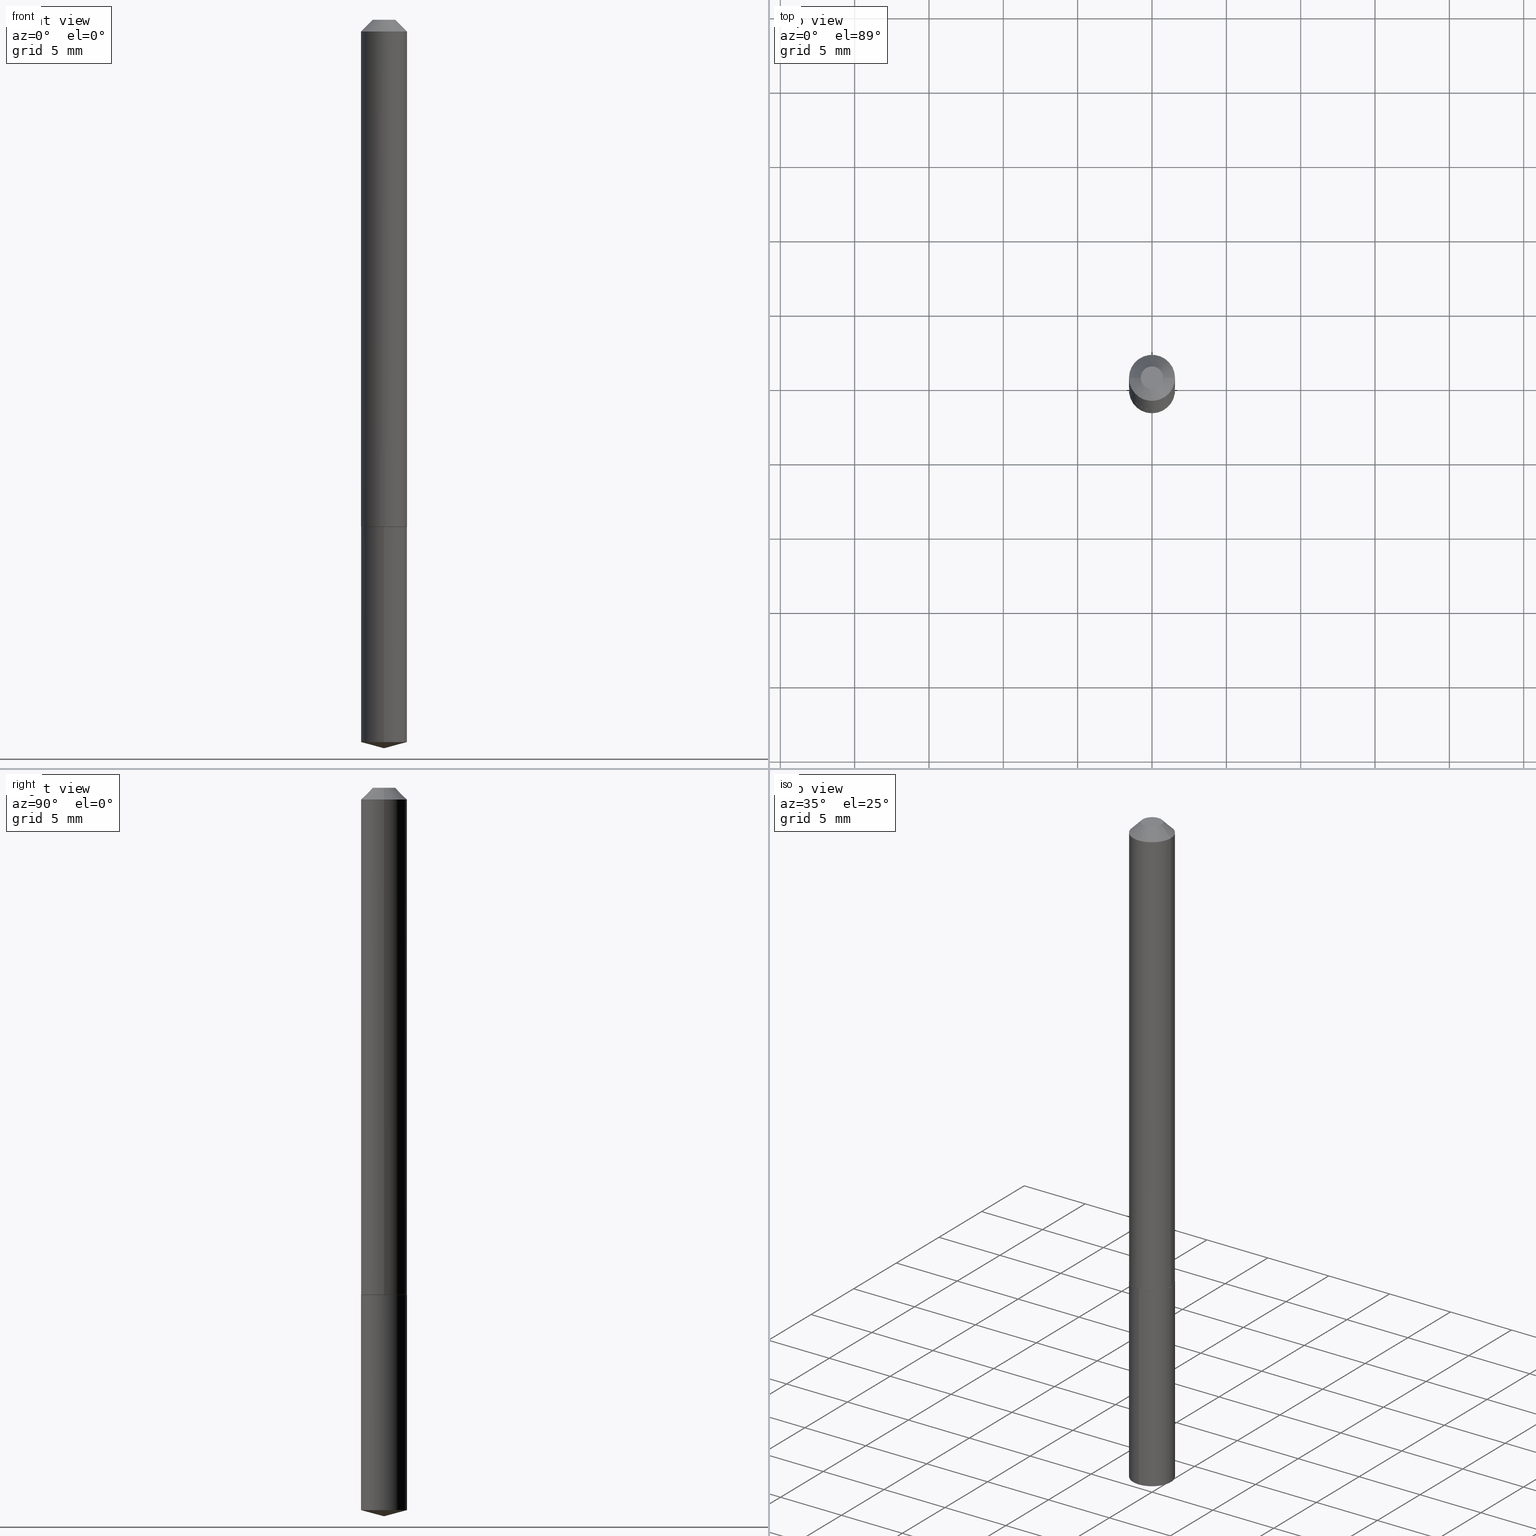
[diagram: canonical four-view strip — front | top / right | iso, engineering-drawing reading convention]
A machine part, canonical four-view strip (front | top / right | iso — engineering-drawing reading convention). The complete STEP part file that produces these views, byte-faithful:
ISO-10303-21;
HEADER;
FILE_DESCRIPTION (( 'STEP AP203' ),
    '1' );
FILE_NAME ('68966.STEP',
    '2024-04-23T13:55:24',
    ( '' ),
    ( '' ),
    'SwSTEP 2.0',
    'SolidWorks 2023',
    '' );
FILE_SCHEMA (( 'CONFIG_CONTROL_DESIGN' ));
ENDSEC;

DATA;
#1 = FACE_OUTER_BOUND ( 'NONE', #358, .T. ) ;
#2 = LINE ( 'NONE', #241, #112 ) ;
#3 = PERSON_AND_ORGANIZATION ( #32, #20 ) ;
#4 = ORIENTED_EDGE ( 'NONE', *, *, #158, .T. ) ;
#5 = APPROVAL_ROLE ( '' ) ;
#6 = DIRECTION ( 'NONE',  ( -6.982962677686265922E-15, -1.000000000000000000, 4.478439333875842027E-15 ) ) ;
#7 = CIRCLE ( 'NONE', #35, 0.02974999999999999520 ) ;
#8 = DIRECTION ( 'NONE',  ( 6.863315791527687949E-15, 0.9659258262890685343, 0.2588190451025195182 ) ) ;
#9 = SHAPE_DEFINITION_REPRESENTATION ( #347, #335 ) ;
#10 = DIRECTION ( 'NONE',  ( -6.982962677686265922E-15, -1.000000000000000000, 4.478439333875842027E-15 ) ) ;
#11 = ADVANCED_FACE ( 'NONE', ( #125 ), #105, .T. ) ;
#12 = DIRECTION ( 'NONE',  ( -1.000000000000000000, 6.982962677686267499E-15, 0.000000000000000000 ) ) ;
#13 = ADVANCED_FACE ( 'NONE', ( #243 ), #285, .T. ) ;
#14 = CARTESIAN_POINT ( 'NONE',  ( 4.334310688136938416E-16, 0.06099999999999530798, -1.342400000000000038 ) ) ;
#15 = DIRECTION ( 'NONE',  ( -6.745023994389832822E-15, -0.9659258262890667579, 0.2588190451025262351 ) ) ;
#16 = DIRECTION ( 'NONE',  ( -2.445468806185136597E-29, 3.491481338843145583E-15, 1.000000000000000000 ) ) ;
#17 = EDGE_CURVE ( 'NONE', #384, #212, #277, .T. ) ;
#18 = AXIS2_PLACEMENT_3D ( 'NONE', #33, #62, #6 ) ;
#19 = DIRECTION ( 'NONE',  ( 2.445600404365775236E-29, -3.491292882758367183E-15, -1.000000000000000000 ) ) ;
#20 = ORGANIZATION ( 'UNSPECIFIED', 'UNSPECIFIED', '' ) ;
#21 = ORIENTED_EDGE ( 'NONE', *, *, #378, .T. ) ;
#22 = EDGE_CURVE ( 'NONE', #212, #187, #381, .T. ) ;
#23 = CC_DESIGN_PERSON_AND_ORGANIZATION_ASSIGNMENT ( #317, #96, ( #176 ) ) ;
#24 = VECTOR ( 'NONE', #28, 39.37007874015748143 ) ;
#25 = ORIENTED_EDGE ( 'NONE', *, *, #232, .F. ) ;
#26 = ORIENTED_EDGE ( 'NONE', *, *, #244, .F. ) ;
#27 = CARTESIAN_POINT ( 'NONE',  ( 3.282797325422927074E-29, -4.686964549263038164E-15, -1.342399999999999816 ) ) ;
#28 = DIRECTION ( 'NONE',  ( -0.7071067811863905872, 7.493145998869786180E-15, 0.7071067811867044473 ) ) ;
#29 = DIRECTION ( 'NONE',  ( -6.982962677686265922E-15, -1.000000000000000000, 4.478439333875842027E-15 ) ) ;
#30 = AXIS2_PLACEMENT_3D ( 'NONE', #119, #19, #383 ) ;
#31 = DIRECTION ( 'NONE',  ( -0.7071067811865452413, 2.468850131082233000E-15, -0.7071067811865497932 ) ) ;
#32 = PERSON ( 'UNSPECIFIED', 'UNSPECIFIED', 'UNSPECIFIED', ('UNSPECIFIED'), ('UNSPECIFIED'), ('UNSPECIFIED') ) ;
#33 = CARTESIAN_POINT ( 'NONE',  ( 3.282797325422927074E-29, -4.686964549263038164E-15, -1.342399999999999816 ) ) ;
#34 = ORIENTED_EDGE ( 'NONE', *, *, #325, .F. ) ;
#35 = AXIS2_PLACEMENT_3D ( 'NONE', #349, #16, #380 ) ;
#36 = COORDINATED_UNIVERSAL_TIME_OFFSET ( 5, 0, .BEHIND. ) ;
#37 = DIRECTION ( 'NONE',  ( -2.445468806185136597E-29, 3.491481338843145583E-15, 1.000000000000000000 ) ) ;
#38 = DIRECTION ( 'NONE',  ( -2.445600404365776077E-29, 3.491292882758366789E-15, 1.000000000000000000 ) ) ;
#39 = APPLICATION_PROTOCOL_DEFINITION ( 'international standard', 'config_control_design', 1994, #153 ) ;
#40 = CC_DESIGN_PERSON_AND_ORGANIZATION_ASSIGNMENT ( #61, #63, ( #306 ) ) ;
#41 = DIRECTION ( 'NONE',  ( 1.000000000000000000, -6.982962677686266711E-15, 4.876176775795935793E-29 ) ) ;
#42 = VECTOR ( 'NONE', #31, 39.37007874015748143 ) ;
#43 = DIRECTION ( 'NONE',  ( -2.445468806185136597E-29, 3.491481338843145583E-15, 1.000000000000000000 ) ) ;
#44 = FACE_OUTER_BOUND ( 'NONE', #88, .T. ) ;
#45 = EDGE_CURVE ( 'NONE', #370, #273, #136, .T. ) ;
#46 = DIRECTION ( 'NONE',  ( 1.000000000000000000, -6.982962677686265922E-15, 0.000000000000000000 ) ) ;
#47 = ORIENTED_EDGE ( 'NONE', *, *, #330, .T. ) ;
#48 = APPROVAL_PERSON_ORGANIZATION ( #274, #180, #226 ) ;
#49 = EDGE_CURVE ( 'NONE', #331, #173, #324, .T. ) ;
#50 = CARTESIAN_POINT ( 'NONE',  ( 4.717807740062017637E-29, -6.735053100129164820E-15, -1.929099999999999815 ) ) ;
#51 = ORIENTED_EDGE ( 'NONE', *, *, #195, .F. ) ;
#52 = ORIENTED_EDGE ( 'NONE', *, *, #17, .F. ) ;
#53 = AXIS2_PLACEMENT_3D ( 'NONE', #219, #64, #89 ) ;
#54 = ORIENTED_EDGE ( 'NONE', *, *, #172, .T. ) ;
#55 = AXIS2_PLACEMENT_3D ( 'NONE', #385, #116, #239 ) ;
#56 = DIRECTION ( 'NONE',  ( -2.445600404365776077E-29, 3.491292882758366789E-15, 1.000000000000000000 ) ) ;
#57 = CARTESIAN_POINT ( 'NONE',  ( 0.06050000000000021333, -5.109433791263058593E-15, -1.342399999999999816 ) ) ;
#58 = EDGE_LOOP ( 'NONE', ( #344, #387, #155 ) ) ;
#59 = ORIENTED_EDGE ( 'NONE', *, *, #337, .F. ) ;
#60 = LOCAL_TIME ( 9, 55, 24.00000000000000000, #221 ) ;
#61 = PERSON_AND_ORGANIZATION ( #32, #20 ) ;
#62 = DIRECTION ( 'NONE',  ( -2.445600404365776077E-29, 3.491292882758366789E-15, 1.000000000000000000 ) ) ;
#63 = PERSON_AND_ORGANIZATION_ROLE ( 'design_supplier' ) ;
#64 = DIRECTION ( 'NONE',  ( -2.445468806185136597E-29, 3.491481338843145583E-15, 1.000000000000000000 ) ) ;
#65 = DIRECTION ( 'NONE',  ( -2.445468806185136877E-29, 3.491481338843145188E-15, 1.000000000000000000 ) ) ;
#66 = AXIS2_PLACEMENT_3D ( 'NONE', #261, #334, #46 ) ;
#67 = PERSON_AND_ORGANIZATION_ROLE ( 'classification_officer' ) ;
#68 = CYLINDRICAL_SURFACE ( 'NONE', #231, 0.06100000000000008193 ) ;
#69 = SECURITY_CLASSIFICATION_LEVEL ( 'unclassified' ) ;
#70 = DIRECTION ( 'NONE',  ( -2.445600404365776077E-29, 3.491292882758366789E-15, 1.000000000000000000 ) ) ;
#71 = MANIFOLD_SOLID_BREP ( 'Body-Move/Copy2[2]', #269 ) ;
#72 = MANIFOLD_SOLID_BREP ( 'Body-Move/Copy2[1]', #282 ) ;
#73 = CARTESIAN_POINT ( 'NONE',  ( -0.06050000000000021333, -4.254436966954064785E-15, -1.342399999999999816 ) ) ;
#74 = VECTOR ( 'NONE', #65, 39.37007874015748143 ) ;
#75 = DIRECTION ( 'NONE',  ( 2.445468806185136597E-29, -3.491481338843145583E-15, -1.000000000000000000 ) ) ;
#76 = DIRECTION ( 'NONE',  ( 1.000000000000000000, -6.982962677686265922E-15, 0.000000000000000000 ) ) ;
#77 = LENGTH_MEASURE_WITH_UNIT ( LENGTH_MEASURE( 0.02539999999999999897 ), #304 );
#78 = VERTEX_POINT ( 'NONE', #217 ) ;
#79 = EDGE_CURVE ( 'NONE', #138, #238, #2, .T. ) ;
#80 = AXIS2_PLACEMENT_3D ( 'NONE', #137, #235, #140 ) ;
#81 = DIRECTION ( 'NONE',  ( 1.000000000000000000, -6.982962677686265922E-15, 0.000000000000000000 ) ) ;
#82 = AXIS2_PLACEMENT_3D ( 'NONE', #171, #327, #76 ) ;
#83 = EDGE_LOOP ( 'NONE', ( #361, #295, #291, #26 ) ) ;
#84 = ORIENTED_EDGE ( 'NONE', *, *, #85, .T. ) ;
#85 = EDGE_CURVE ( 'NONE', #248, #238, #216, .T. ) ;
#86 = AXIS2_PLACEMENT_3D ( 'NONE', #257, #38, #95 ) ;
#87 = DIRECTION ( 'NONE',  ( -1.000000000000000000, 6.982962677686265922E-15, -4.876176775795935793E-29 ) ) ;
#88 = EDGE_LOOP ( 'NONE', ( #52, #157, #372 ) ) ;
#89 = DIRECTION ( 'NONE',  ( 1.000000000000000000, -6.982962677686265922E-15, 0.000000000000000000 ) ) ;
#90 = DIRECTION ( 'NONE',  ( 0.7071067811865452413, -7.319954787623248157E-15, -0.7071067811865497932 ) ) ;
#91 =( GEOMETRIC_REPRESENTATION_CONTEXT ( 3 ) GLOBAL_UNCERTAINTY_ASSIGNED_CONTEXT ( ( #329 ) ) GLOBAL_UNIT_ASSIGNED_CONTEXT ( ( #200, #205, #365 ) ) REPRESENTATION_CONTEXT ( 'NONE', 'WORKASPACE' ) );
#92 = PERSON_AND_ORGANIZATION ( #32, #20 ) ;
#93 = CARTESIAN_POINT ( 'NONE',  ( 7.642090019328601786E-31, -1.091087918388490144E-16, -0.03125000000000020123 ) ) ;
#94 = DATE_AND_TIME ( #346, #293 ) ;
#95 = DIRECTION ( 'NONE',  ( -6.982962677686265922E-15, -1.000000000000000000, 4.478439333875842027E-15 ) ) ;
#96 = PERSON_AND_ORGANIZATION_ROLE ( 'design_owner' ) ;
#97 = LINE ( 'NONE', #255, #182 ) ;
#98 = CIRCLE ( 'NONE', #86, 0.06099999999999999173 ) ;
#99 = DATE_AND_TIME ( #185, #113 ) ;
#100 = LOCAL_TIME ( 9, 55, 24.00000000000000000, #184 ) ;
#101 = CARTESIAN_POINT ( 'NONE',  ( -0.02974999999999999520, 2.622975355805897859E-16, 2.388061258320914624E-19 ) ) ;
#102 = CARTESIAN_POINT ( 'NONE',  ( 3.282797325422927074E-29, -4.686964549263038164E-15, -1.342399999999999816 ) ) ;
#103 = EDGE_CURVE ( 'NONE', #264, #248, #275, .T. ) ;
#104 = DIRECTION ( 'NONE',  ( -2.438088387897960049E-29, 3.491481338843145188E-15, 1.000000000000000000 ) ) ;
#105 = CONICAL_SURFACE ( 'NONE', #332, 0.06099999999999999173, 0.7853981633974450594 ) ;
#106 = CARTESIAN_POINT ( 'NONE',  ( -5.839929314523209442E-48, 8.337871319499132076E-34, 2.388061258337348103E-19 ) ) ;
#107 = PLANE ( 'NONE',  #131 ) ;
#108 = ORIENTED_EDGE ( 'NONE', *, *, #103, .F. ) ;
#109 = DIRECTION ( 'NONE',  ( -2.445468806185136597E-29, 3.491481338843145583E-15, 1.000000000000000000 ) ) ;
#110 = CC_DESIGN_PERSON_AND_ORGANIZATION_ASSIGNMENT ( #188, #156, ( #306 ) ) ;
#111 = EDGE_LOOP ( 'NONE', ( #54, #143, #51, #127 ) ) ;
#112 = VECTOR ( 'NONE', #90, 39.37007874015748143 ) ;
#113 = LOCAL_TIME ( 9, 55, 24.00000000000000000, #36 ) ;
#114 = ADVANCED_FACE ( 'NONE', ( #152 ), #342, .T. ) ;
#115 = ORIENTED_EDGE ( 'NONE', *, *, #158, .F. ) ;
#116 = DIRECTION ( 'NONE',  ( 0.000000000000000000, 0.000000000000000000, 1.000000000000000000 ) ) ;
#117 = AXIS2_PLACEMENT_3D ( 'NONE', #106, #270, #151 ) ;
#118 = ORIENTED_EDGE ( 'NONE', *, *, #45, .T. ) ;
#119 = CARTESIAN_POINT ( 'NONE',  ( 3.282797325422927074E-29, -4.686964549263038164E-15, -1.342399999999999816 ) ) ;
#120 = ORIENTED_EDGE ( 'NONE', *, *, #79, .F. ) ;
#121 = CALENDAR_DATE ( 2024, 23, 4 ) ;
#122 = DESIGN_CONTEXT ( 'detailed design', #153, 'design' ) ;
#123 = ORIENTED_EDGE ( 'NONE', *, *, #325, .T. ) ;
#124 = CALENDAR_DATE ( 2024, 23, 4 ) ;
#125 = FACE_OUTER_BOUND ( 'NONE', #236, .T. ) ;
#126 = VECTOR ( 'NONE', #133, 39.37007874015748143 ) ;
#127 = ORIENTED_EDGE ( 'NONE', *, *, #193, .F. ) ;
#128 = FACE_OUTER_BOUND ( 'NONE', #169, .T. ) ;
#129 = DATE_TIME_ROLE ( 'creation_date' ) ;
#130 = DIRECTION ( 'NONE',  ( -2.445600404365776077E-29, 3.491292882758366789E-15, 1.000000000000000000 ) ) ;
#131 = AXIS2_PLACEMENT_3D ( 'NONE', #234, #290, #87 ) ;
#132 = CC_DESIGN_APPROVAL ( #180, ( #306 ) ) ;
#133 = DIRECTION ( 'NONE',  ( -2.445600404365776077E-29, 3.491292882758367183E-15, 1.000000000000000000 ) ) ;
#134 = CARTESIAN_POINT ( 'NONE',  ( -4.259607233388293679E-16, -0.06100000000000468242, -1.342399999999999594 ) ) ;
#135 = LINE ( 'NONE', #14, #276 ) ;
#136 = CIRCLE ( 'NONE', #386, 0.06099999999999999173 ) ;
#137 = CARTESIAN_POINT ( 'NONE',  ( 3.282797325422927074E-29, -4.686964549263038164E-15, -1.342399999999999816 ) ) ;
#138 = VERTEX_POINT ( 'NONE', #194 ) ;
#139 = APPROVAL ( #159, 'UNSPECIFIED' ) ;
#140 = DIRECTION ( 'NONE',  ( 1.000000000000000000, -6.982962677686268288E-15, 0.000000000000000000 ) ) ;
#141 = EDGE_LOOP ( 'NONE', ( #323, #118 ) ) ;
#142 = VECTOR ( 'NONE', #15, 39.37007874015748854 ) ;
#143 = ORIENTED_EDGE ( 'NONE', *, *, #144, .T. ) ;
#144 = EDGE_CURVE ( 'NONE', #212, #370, #135, .T. ) ;
#145 = ORIENTED_EDGE ( 'NONE', *, *, #45, .F. ) ;
#146 = ORIENTED_EDGE ( 'NONE', *, *, #148, .T. ) ;
#147 = FACE_OUTER_BOUND ( 'NONE', #58, .T. ) ;
#148 = EDGE_CURVE ( 'NONE', #138, #264, #7, .T. ) ;
#149 = AXIS2_PLACEMENT_3D ( 'NONE', #333, #56, #177 ) ;
#150 = ORIENTED_EDGE ( 'NONE', *, *, #193, .T. ) ;
#151 = DIRECTION ( 'NONE',  ( 1.000000000000000000, -6.982962677686266711E-15, 4.876192930765217323E-29 ) ) ;
#152 = FACE_OUTER_BOUND ( 'NONE', #111, .T. ) ;
#153 = APPLICATION_CONTEXT ( 'configuration controlled 3d designs of mechanical parts and assemblies' ) ;
#154 = CALENDAR_DATE ( 2024, 23, 4 ) ;
#155 = ORIENTED_EDGE ( 'NONE', *, *, #172, .F. ) ;
#156 = PERSON_AND_ORGANIZATION_ROLE ( 'creator' ) ;
#157 = ORIENTED_EDGE ( 'NONE', *, *, #223, .T. ) ;
#158 = EDGE_CURVE ( 'NONE', #78, #248, #318, .T. ) ;
#159 = APPROVAL_STATUS ( 'not_yet_approved' ) ;
#160 = CARTESIAN_POINT ( 'NONE',  ( 0.000000000000000000, 0.000000000000000000, 0.000000000000000000 ) ) ;
#161 = PLANE ( 'NONE',  #320 ) ;
#162 = ADVANCED_FACE ( 'NONE', ( #44 ), #340, .T. ) ;
#163 = DIRECTION ( 'NONE',  ( -2.445468806185136877E-29, 3.491481338843145188E-15, 1.000000000000000000 ) ) ;
#164 = AXIS2_PLACEMENT_3D ( 'NONE', #167, #229, #10 ) ;
#165 = ADVANCED_FACE ( 'NONE', ( #259 ), #68, .T. ) ;
#166 = CARTESIAN_POINT ( 'NONE',  ( -4.259607233388154150E-16, -0.06100000000000668082, -1.912755099261701064 ) ) ;
#167 = CARTESIAN_POINT ( 'NONE',  ( 4.677657986809425875E-29, -6.678241247960359106E-15, -1.912755099261701286 ) ) ;
#168 = CARTESIAN_POINT ( 'NONE',  ( 7.642090019328601786E-31, -1.091087918388490144E-16, -0.03125000000000020123 ) ) ;
#169 = EDGE_LOOP ( 'NONE', ( #115, #21, #202, #179 ) ) ;
#170 = AXIS2_PLACEMENT_3D ( 'NONE', #168, #109, #181 ) ;
#171 = CARTESIAN_POINT ( 'NONE',  ( 3.281574591019834273E-29, -4.685218808593615871E-15, -1.341899999999999649 ) ) ;
#172 = EDGE_CURVE ( 'NONE', #187, #212, #197, .T. ) ;
#173 = VERTEX_POINT ( 'NONE', #73 ) ;
#174 = SECURITY_CLASSIFICATION ( '', '', #69 ) ;
#175 = PRODUCT_DEFINITION ( 'UNKNOWN', '', #306, #122 ) ;
#176 = PRODUCT ( '68966', '68966', '', ( #294 ) ) ;
#177 = DIRECTION ( 'NONE',  ( -6.982962677686265922E-15, -1.000000000000000000, 4.478439333875842027E-15 ) ) ;
#178 = DIRECTION ( 'NONE',  ( -2.445600404365776077E-29, 3.491292882758366789E-15, 1.000000000000000000 ) ) ;
#179 = ORIENTED_EDGE ( 'NONE', *, *, #85, .F. ) ;
#180 = APPROVAL ( #251, 'UNSPECIFIED' ) ;
#181 = DIRECTION ( 'NONE',  ( 1.000000000000000000, -6.982962677686267499E-15, 0.000000000000000000 ) ) ;
#182 = VECTOR ( 'NONE', #189, 39.37007874015748143 ) ;
#183 = DIRECTION ( 'NONE',  ( 2.445468806185136597E-29, -3.491481338843145583E-15, -1.000000000000000000 ) ) ;
#184 = COORDINATED_UNIVERSAL_TIME_OFFSET ( 5, 0, .BEHIND. ) ;
#185 = CALENDAR_DATE ( 2024, 23, 4 ) ;
#186 = ADVANCED_FACE ( 'NONE', ( #128 ), #252, .T. ) ;
#187 = VERTEX_POINT ( 'NONE', #166 ) ;
#188 = PERSON_AND_ORGANIZATION ( #32, #20 ) ;
#189 = DIRECTION ( 'NONE',  ( 0.7071067811863905872, -2.468850131080613074E-15, 0.7071067811867044473 ) ) ;
#190 = CC_DESIGN_SECURITY_CLASSIFICATION ( #174, ( #306 ) ) ;
#191 = DATE_TIME_ROLE ( 'classification_date' ) ;
#192 = FACE_OUTER_BOUND ( 'NONE', #268, .T. ) ;
#193 = EDGE_CURVE ( 'NONE', #187, #273, #279, .T. ) ;
#194 = CARTESIAN_POINT ( 'NONE',  ( 0.02974999999999999520, -3.658494925683077236E-16, 2.388061258357397034E-19 ) ) ;
#195 = EDGE_CURVE ( 'NONE', #273, #370, #98, .T. ) ;
#196 = CARTESIAN_POINT ( 'NONE',  ( -0.06100000000000008193, 4.334310688136616956E-16, -3.000550405055496697E-30 ) ) ;
#197 = CIRCLE ( 'NONE', #164, 0.06099999999999999173 ) ;
#198 = CC_DESIGN_APPROVAL ( #254, ( #175 ) ) ;
#199 = CARTESIAN_POINT ( 'NONE',  ( 0.06100000000000016520, -5.111179531932479308E-15, -1.341899999999999649 ) ) ;
#200 =( CONVERSION_BASED_UNIT ( 'INCH', #77 ) LENGTH_UNIT ( ) NAMED_UNIT ( #253 ) );
#201 = ADVANCED_FACE ( 'NONE', ( #374 ), #161, .F. ) ;
#202 = ORIENTED_EDGE ( 'NONE', *, *, #232, .T. ) ;
#203 = AXIS2_PLACEMENT_3D ( 'NONE', #281, #70, #284 ) ;
#204 = APPROVAL_PERSON_ORGANIZATION ( #3, #139, #310 ) ;
#205 =( NAMED_UNIT ( * ) PLANE_ANGLE_UNIT ( ) SI_UNIT ( $, .RADIAN. ) );
#206 = ORIENTED_EDGE ( 'NONE', *, *, #79, .T. ) ;
#207 = ORIENTED_EDGE ( 'NONE', *, *, #378, .F. ) ;
#208 = ORIENTED_EDGE ( 'NONE', *, *, #103, .T. ) ;
#209 = CONICAL_SURFACE ( 'NONE', #260, 146.9311341562537052, 1.308996938995744985 ) ;
#210 = ORIENTED_EDGE ( 'NONE', *, *, #337, .T. ) ;
#211 = PLANE ( 'NONE',  #30 ) ;
#212 = VERTEX_POINT ( 'NONE', #353 ) ;
#213 = CC_DESIGN_PERSON_AND_ORGANIZATION_ASSIGNMENT ( #245, #343, ( #175 ) ) ;
#214 = DIRECTION ( 'NONE',  ( -2.445468806185136597E-29, 3.491481338843145583E-15, 1.000000000000000000 ) ) ;
#215 = CARTESIAN_POINT ( 'NONE',  ( 3.282797325422927074E-29, -4.686964549263038164E-15, -1.342399999999999816 ) ) ;
#216 = CIRCLE ( 'NONE', #265, 0.06099999999999999173 ) ;
#217 = CARTESIAN_POINT ( 'NONE',  ( -0.06100000000000016520, -4.251787739779952795E-15, -1.341899999999999649 ) ) ;
#218 = PERSON_AND_ORGANIZATION ( #32, #20 ) ;
#219 = CARTESIAN_POINT ( 'NONE',  ( 3.281574591019834273E-29, -4.685218808593615871E-15, -1.341899999999999649 ) ) ;
#220 = DIRECTION ( 'NONE',  ( 1.000000000000000000, -6.982962677686265922E-15, 4.876176775795935793E-29 ) ) ;
#221 = COORDINATED_UNIVERSAL_TIME_OFFSET ( 5, 0, .BEHIND. ) ;
#222 = CARTESIAN_POINT ( 'NONE',  ( -0.06099999999999999173, -1.963732731402569410E-15, -0.03125000000000020123 ) ) ;
#223 = EDGE_CURVE ( 'NONE', #384, #187, #345, .T. ) ;
#224 = AXIS2_PLACEMENT_3D ( 'NONE', #230, #75, #12 ) ;
#225 = CONICAL_SURFACE ( 'NONE', #271, 0.06100000000000016520, 0.7853981633972263454 ) ;
#226 = APPROVAL_ROLE ( '' ) ;
#227 = APPLICATION_CONTEXT ( 'configuration controlled 3d designs of mechanical parts and assemblies' ) ;
#228 = LINE ( 'NONE', #258, #74 ) ;
#229 = DIRECTION ( 'NONE',  ( -2.445600404365776077E-29, 3.491292882758366789E-15, 1.000000000000000000 ) ) ;
#230 = CARTESIAN_POINT ( 'NONE',  ( 7.642090019328601786E-31, -1.091087918388490144E-16, -0.03125000000000020123 ) ) ;
#231 = AXIS2_PLACEMENT_3D ( 'NONE', #160, #37, #321 ) ;
#232 = EDGE_CURVE ( 'NONE', #299, #238, #228, .T. ) ;
#233 = FACE_OUTER_BOUND ( 'NONE', #141, .T. ) ;
#234 = CARTESIAN_POINT ( 'NONE',  ( -2.919964657261604721E-48, 4.168935659749566038E-34, 1.194030629168674052E-19 ) ) ;
#235 = DIRECTION ( 'NONE',  ( -2.445468806185136597E-29, 3.491481338843145583E-15, 1.000000000000000000 ) ) ;
#236 = EDGE_LOOP ( 'NONE', ( #120, #34, #208, #84 ) ) ;
#237 = PRODUCT_RELATED_PRODUCT_CATEGORY ( 'detail', '', ( #176 ) ) ;
#238 = VERTEX_POINT ( 'NONE', #379 ) ;
#239 = DIRECTION ( 'NONE',  ( 1.000000000000000000, 0.000000000000000000, 0.000000000000000000 ) ) ;
#240 = AXIS2_PLACEMENT_3D ( 'NONE', #377, #130, #288 ) ;
#241 = CARTESIAN_POINT ( 'NONE',  ( 0.06099999999999999173, -5.275991697029124053E-16, -0.03125000000000020123 ) ) ;
#242 = CARTESIAN_POINT ( 'NONE',  ( 7.642090019328601786E-31, -1.091087918388490144E-16, -0.03125000000000020123 ) ) ;
#243 = FACE_OUTER_BOUND ( 'NONE', #301, .T. ) ;
#244 = EDGE_CURVE ( 'NONE', #331, #299, #97, .T. ) ;
#245 = PERSON_AND_ORGANIZATION ( #32, #20 ) ;
#246 = AXIS2_PLACEMENT_3D ( 'NONE', #355, #43, #41 ) ;
#247 = APPROVAL_PERSON_ORGANIZATION ( #92, #254, #5 ) ;
#248 = VERTEX_POINT ( 'NONE', #222 ) ;
#249 = APPROVAL_DATE_TIME ( #341, #254 ) ;
#250 = ORIENTED_EDGE ( 'NONE', *, *, #49, .F. ) ;
#251 = APPROVAL_STATUS ( 'not_yet_approved' ) ;
#252 = CYLINDRICAL_SURFACE ( 'NONE', #246, 0.06100000000000008193 ) ;
#253 = DIMENSIONAL_EXPONENTS ( 1.000000000000000000, 0.000000000000000000, 0.000000000000000000, 0.000000000000000000, 0.000000000000000000, 0.000000000000000000, 0.000000000000000000 ) ;
#254 = APPROVAL ( #278, 'UNSPECIFIED' ) ;
#255 = CARTESIAN_POINT ( 'NONE',  ( 0.06100000000000016520, -5.111179531932479308E-15, -1.341899999999999649 ) ) ;
#256 = CIRCLE ( 'NONE', #80, 0.06050000000000021333 ) ;
#257 = CARTESIAN_POINT ( 'NONE',  ( 3.282797325422927074E-29, -4.686964549263038164E-15, -1.342399999999999816 ) ) ;
#258 = CARTESIAN_POINT ( 'NONE',  ( 0.06100000000000008193, -4.259607233388628452E-16, 2.974467833235524715E-30 ) ) ;
#259 = FACE_OUTER_BOUND ( 'NONE', #389, .T. ) ;
#260 = AXIS2_PLACEMENT_3D ( 'NONE', #357, #178, #338 ) ;
#261 = CARTESIAN_POINT ( 'NONE',  ( 3.281574591019834273E-29, -4.685218808593615871E-15, -1.341899999999999649 ) ) ;
#262 = ORIENTED_EDGE ( 'NONE', *, *, #144, .F. ) ;
#263 = LINE ( 'NONE', #302, #24 ) ;
#264 = VERTEX_POINT ( 'NONE', #101 ) ;
#265 = AXIS2_PLACEMENT_3D ( 'NONE', #242, #364, #339 ) ;
#266 = ORIENTED_EDGE ( 'NONE', *, *, #319, .T. ) ;
#267 = ADVANCED_FACE ( 'NONE', ( #192 ), #316, .T. ) ;
#268 = EDGE_LOOP ( 'NONE', ( #262, #336, #150, #145 ) ) ;
#269 = CLOSED_SHELL ( 'NONE', ( #287, #165, #352, #201, #13, #186, #11, #371 ) ) ;
#270 = DIRECTION ( 'NONE',  ( -2.445468806185136597E-29, 3.491481338843145583E-15, 1.000000000000000000 ) ) ;
#271 = AXIS2_PLACEMENT_3D ( 'NONE', #356, #214, #81 ) ;
#272 = ORIENTED_EDGE ( 'NONE', *, *, #244, .T. ) ;
#273 = VERTEX_POINT ( 'NONE', #314 ) ;
#274 = PERSON_AND_ORGANIZATION ( #32, #20 ) ;
#275 = LINE ( 'NONE', #366, #42 ) ;
#276 = VECTOR ( 'NONE', #322, 39.37007874015748143 ) ;
#277 = LINE ( 'NONE', #303, #360 ) ;
#278 = APPROVAL_STATUS ( 'not_yet_approved' ) ;
#279 = LINE ( 'NONE', #134, #126 ) ;
#280 = CC_DESIGN_DATE_AND_TIME_ASSIGNMENT ( #99, #191, ( #174 ) ) ;
#281 = CARTESIAN_POINT ( 'NONE',  ( 3.282797325422927074E-29, -4.686964549263038164E-15, -1.342399999999999816 ) ) ;
#282 = CLOSED_SHELL ( 'NONE', ( #114, #308, #162, #267, #305 ) ) ;
#283 = VECTOR ( 'NONE', #163, 39.37007874015748143 ) ;
#284 = DIRECTION ( 'NONE',  ( -6.982962677686265922E-15, -1.000000000000000000, 4.478439333875842027E-15 ) ) ;
#285 = CONICAL_SURFACE ( 'NONE', #53, 0.06100000000000016520, 0.7853981633972263454 ) ;
#286 = CARTESIAN_POINT ( 'NONE',  ( 4.717454425266637205E-29, -6.735559067025579750E-15, -1.929099999999999815 ) ) ;
#287 = ADVANCED_FACE ( 'NONE', ( #351 ), #313, .T. ) ;
#288 = DIRECTION ( 'NONE',  ( -6.982962677686267499E-15, -1.000000000000000000, 3.510303681827671593E-15 ) ) ;
#289 = CC_DESIGN_DATE_AND_TIME_ASSIGNMENT ( #315, #129, ( #175 ) ) ;
#290 = DIRECTION ( 'NONE',  ( 2.438088387897960049E-29, -3.491481338843145188E-15, -1.000000000000000000 ) ) ;
#291 = ORIENTED_EDGE ( 'NONE', *, *, #319, .F. ) ;
#292 = CIRCLE ( 'NONE', #117, 0.02974999999999999520 ) ;
#293 = LOCAL_TIME ( 9, 55, 24.00000000000000000, #369 ) ;
#294 = MECHANICAL_CONTEXT ( 'NONE', #227, 'mechanical' ) ;
#295 = ORIENTED_EDGE ( 'NONE', *, *, #300, .T. ) ;
#296 = CC_DESIGN_PERSON_AND_ORGANIZATION_ASSIGNMENT ( #218, #67, ( #174 ) ) ;
#297 = ORIENTED_EDGE ( 'NONE', *, *, #330, .F. ) ;
#298 = CC_DESIGN_APPROVAL ( #139, ( #174 ) ) ;
#299 = VERTEX_POINT ( 'NONE', #199 ) ;
#300 = EDGE_CURVE ( 'NONE', #173, #78, #263, .T. ) ;
#301 = EDGE_LOOP ( 'NONE', ( #388, #210, #272, #207 ) ) ;
#302 = CARTESIAN_POINT ( 'NONE',  ( -0.06100000000000016520, -4.251787739779952795E-15, -1.341899999999999649 ) ) ;
#303 = CARTESIAN_POINT ( 'NONE',  ( 4.717810838215718776E-29, -6.735053100129164820E-15, -1.929099999999999815 ) ) ;
#304 =( LENGTH_UNIT ( ) NAMED_UNIT ( * ) SI_UNIT ( $, .METRE. ) );
#305 = ADVANCED_FACE ( 'NONE', ( #233 ), #211, .F. ) ;
#306 = PRODUCT_DEFINITION_FORMATION_WITH_SPECIFIED_SOURCE ( 'ANY', '', #176, .NOT_KNOWN. ) ;
#307 = EDGE_LOOP ( 'NONE', ( #250, #59 ) ) ;
#308 = ADVANCED_FACE ( 'NONE', ( #147 ), #209, .T. ) ;
#309 = DIRECTION ( 'NONE',  ( -2.445468806185136597E-29, 3.491481338843145583E-15, 1.000000000000000000 ) ) ;
#310 = APPROVAL_ROLE ( '' ) ;
#311 = DIRECTION ( 'NONE',  ( -1.000000000000000000, 6.982962677686267499E-15, 0.000000000000000000 ) ) ;
#312 = APPROVAL_DATE_TIME ( #94, #180 ) ;
#313 = CONICAL_SURFACE ( 'NONE', #224, 0.06099999999999999173, 0.7853981633974450594 ) ;
#314 = CARTESIAN_POINT ( 'NONE',  ( -4.259607233388293679E-16, -0.06100000000000468242, -1.342399999999999594 ) ) ;
#315 = DATE_AND_TIME ( #124, #60 ) ;
#316 = CYLINDRICAL_SURFACE ( 'NONE', #203, 0.06099999999999999173 ) ;
#317 = PERSON_AND_ORGANIZATION ( #32, #20 ) ;
#318 = LINE ( 'NONE', #196, #283 ) ;
#319 = EDGE_CURVE ( 'NONE', #299, #78, #354, .T. ) ;
#320 = AXIS2_PLACEMENT_3D ( 'NONE', #102, #104, #220 ) ;
#321 = DIRECTION ( 'NONE',  ( 1.000000000000000000, -6.982962677686266711E-15, 4.876176775795935793E-29 ) ) ;
#322 = DIRECTION ( 'NONE',  ( -2.445600404365776077E-29, 3.491292882758367183E-15, 1.000000000000000000 ) ) ;
#323 = ORIENTED_EDGE ( 'NONE', *, *, #195, .T. ) ;
#324 = CIRCLE ( 'NONE', #375, 0.06050000000000021333 ) ;
#325 = EDGE_CURVE ( 'NONE', #264, #138, #292, .T. ) ;
#326 = LOCAL_TIME ( 9, 55, 24.00000000000000000, #373 ) ;
#327 = DIRECTION ( 'NONE',  ( -2.445468806185136597E-29, 3.491481338843145583E-15, 1.000000000000000000 ) ) ;
#328 = ORIENTED_EDGE ( 'NONE', *, *, #148, .F. ) ;
#329 = UNCERTAINTY_MEASURE_WITH_UNIT (LENGTH_MEASURE( 1.000000000000000082E-05 ), #200, 'distance_accuracy_value', 'NONE');
#330 = EDGE_CURVE ( 'NONE', #238, #248, #348, .T. ) ;
#331 = VERTEX_POINT ( 'NONE', #57 ) ;
#332 = AXIS2_PLACEMENT_3D ( 'NONE', #93, #183, #311 ) ;
#333 = CARTESIAN_POINT ( 'NONE',  ( 4.677657986809425875E-29, -6.678241247960359106E-15, -1.912755099261701286 ) ) ;
#334 = DIRECTION ( 'NONE',  ( -2.445468806185136597E-29, 3.491481338843145583E-15, 1.000000000000000000 ) ) ;
#335 = ADVANCED_BREP_SHAPE_REPRESENTATION ( '68966', ( #72, #71, #55 ), #91 ) ;
#336 = ORIENTED_EDGE ( 'NONE', *, *, #22, .T. ) ;
#337 = EDGE_CURVE ( 'NONE', #173, #331, #256, .T. ) ;
#338 = DIRECTION ( 'NONE',  ( -6.982962677686267499E-15, -1.000000000000000000, 3.510303681827671593E-15 ) ) ;
#339 = DIRECTION ( 'NONE',  ( 1.000000000000000000, -6.982962677686267499E-15, 0.000000000000000000 ) ) ;
#340 = CONICAL_SURFACE ( 'NONE', #240, 146.9311341562537052, 1.308996938995744985 ) ;
#341 = DATE_AND_TIME ( #154, #100 ) ;
#342 = CYLINDRICAL_SURFACE ( 'NONE', #18, 0.06099999999999999173 ) ;
#343 = PERSON_AND_ORGANIZATION_ROLE ( 'creator' ) ;
#344 = ORIENTED_EDGE ( 'NONE', *, *, #223, .F. ) ;
#345 = LINE ( 'NONE', #286, #142 ) ;
#346 = CALENDAR_DATE ( 2024, 23, 4 ) ;
#347 = PRODUCT_DEFINITION_SHAPE ( 'NONE', 'NONE',  #175 ) ;
#348 = CIRCLE ( 'NONE', #170, 0.06099999999999999173 ) ;
#349 = CARTESIAN_POINT ( 'NONE',  ( -5.839929314523209442E-48, 8.337871319499132076E-34, 2.388061258337348103E-19 ) ) ;
#350 = APPROVAL_DATE_TIME ( #367, #139 ) ;
#351 = FACE_OUTER_BOUND ( 'NONE', #362, .T. ) ;
#352 = ADVANCED_FACE ( 'NONE', ( #359 ), #225, .T. ) ;
#353 = CARTESIAN_POINT ( 'NONE',  ( 4.334310688137078439E-16, 0.06099999999999331651, -1.912755099261701508 ) ) ;
#354 = CIRCLE ( 'NONE', #66, 0.06100000000000016520 ) ;
#355 = CARTESIAN_POINT ( 'NONE',  ( 0.000000000000000000, 0.000000000000000000, 0.000000000000000000 ) ) ;
#356 = CARTESIAN_POINT ( 'NONE',  ( 3.281574591019834273E-29, -4.685218808593615871E-15, -1.341899999999999649 ) ) ;
#357 = CARTESIAN_POINT ( 'NONE',  ( -9.156584940417725324E-28, 1.307171696155709299E-13, 37.44097874015747607 ) ) ;
#358 = EDGE_LOOP ( 'NONE', ( #123, #146 ) ) ;
#359 = FACE_OUTER_BOUND ( 'NONE', #83, .T. ) ;
#360 = VECTOR ( 'NONE', #8, 39.37007874015748143 ) ;
#361 = ORIENTED_EDGE ( 'NONE', *, *, #49, .T. ) ;
#362 = EDGE_LOOP ( 'NONE', ( #328, #206, #47, #108 ) ) ;
#363 = APPLICATION_PROTOCOL_DEFINITION ( 'international standard', 'config_control_design', 1994, #227 ) ;
#364 = DIRECTION ( 'NONE',  ( -2.445468806185136597E-29, 3.491481338843145583E-15, 1.000000000000000000 ) ) ;
#365 =( NAMED_UNIT ( * ) SI_UNIT ( $, .STERADIAN. ) SOLID_ANGLE_UNIT ( ) );
#366 = CARTESIAN_POINT ( 'NONE',  ( -0.06099999999999999173, 3.168519315000132022E-16, -0.03125000000000020123 ) ) ;
#367 = DATE_AND_TIME ( #121, #326 ) ;
#368 = DIRECTION ( 'NONE',  ( -2.445600404365776077E-29, 3.491292882758366789E-15, 1.000000000000000000 ) ) ;
#369 = COORDINATED_UNIVERSAL_TIME_OFFSET ( 5, 0, .BEHIND. ) ;
#370 = VERTEX_POINT ( 'NONE', #382 ) ;
#371 = ADVANCED_FACE ( 'NONE', ( #1 ), #107, .F. ) ;
#372 = ORIENTED_EDGE ( 'NONE', *, *, #22, .F. ) ;
#373 = COORDINATED_UNIVERSAL_TIME_OFFSET ( 5, 0, .BEHIND. ) ;
#374 = FACE_OUTER_BOUND ( 'NONE', #307, .T. ) ;
#375 = AXIS2_PLACEMENT_3D ( 'NONE', #215, #309, #390 ) ;
#376 = CIRCLE ( 'NONE', #82, 0.06100000000000016520 ) ;
#377 = CARTESIAN_POINT ( 'NONE',  ( -9.156584940417725324E-28, 1.307171696155709299E-13, 37.44097874015747607 ) ) ;
#378 = EDGE_CURVE ( 'NONE', #78, #299, #376, .T. ) ;
#379 = CARTESIAN_POINT ( 'NONE',  ( 0.06099999999999999173, -5.350695151777112556E-16, -0.03125000000000020123 ) ) ;
#380 = DIRECTION ( 'NONE',  ( 1.000000000000000000, -6.982962677686266711E-15, 4.876192930765217323E-29 ) ) ;
#381 = CIRCLE ( 'NONE', #149, 0.06099999999999999173 ) ;
#382 = CARTESIAN_POINT ( 'NONE',  ( 4.334310688137078932E-16, 0.06099999999999530798, -1.342400000000000038 ) ) ;
#383 = DIRECTION ( 'NONE',  ( 6.982962677686265922E-15, 1.000000000000000000, -3.491292882758367183E-15 ) ) ;
#384 = VERTEX_POINT ( 'NONE', #50 ) ;
#385 = CARTESIAN_POINT ( 'NONE',  ( 0.000000000000000000, 0.000000000000000000, 0.000000000000000000 ) ) ;
#386 = AXIS2_PLACEMENT_3D ( 'NONE', #27, #368, #29 ) ;
#387 = ORIENTED_EDGE ( 'NONE', *, *, #17, .T. ) ;
#388 = ORIENTED_EDGE ( 'NONE', *, *, #300, .F. ) ;
#389 = EDGE_LOOP ( 'NONE', ( #266, #4, #297, #25 ) ) ;
#390 = DIRECTION ( 'NONE',  ( 1.000000000000000000, -6.982962677686268288E-15, 0.000000000000000000 ) ) ;
ENDSEC;
END-ISO-10303-21;
